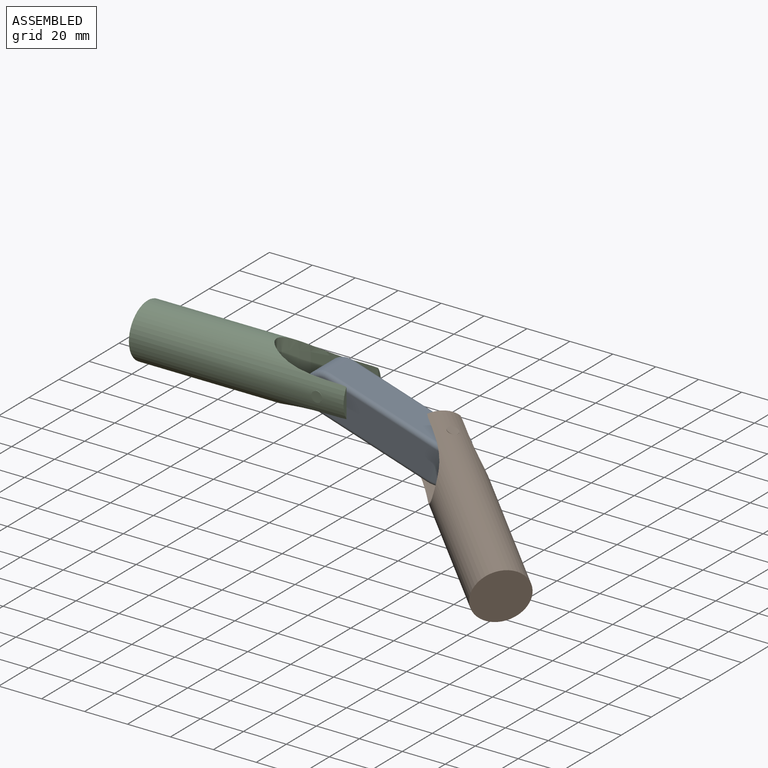
[diagram: assembled view]
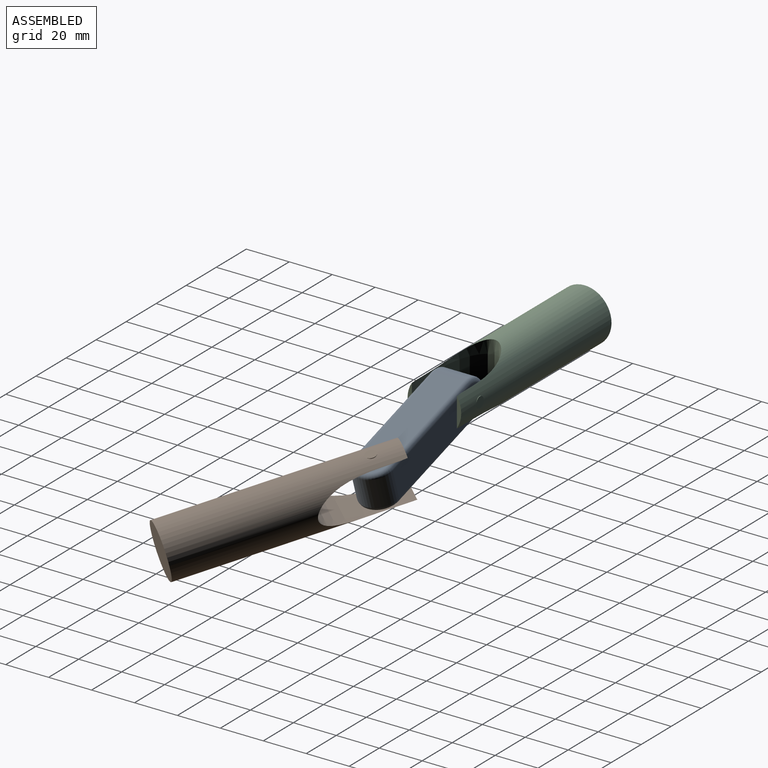
[diagram: assembled view, second angle]
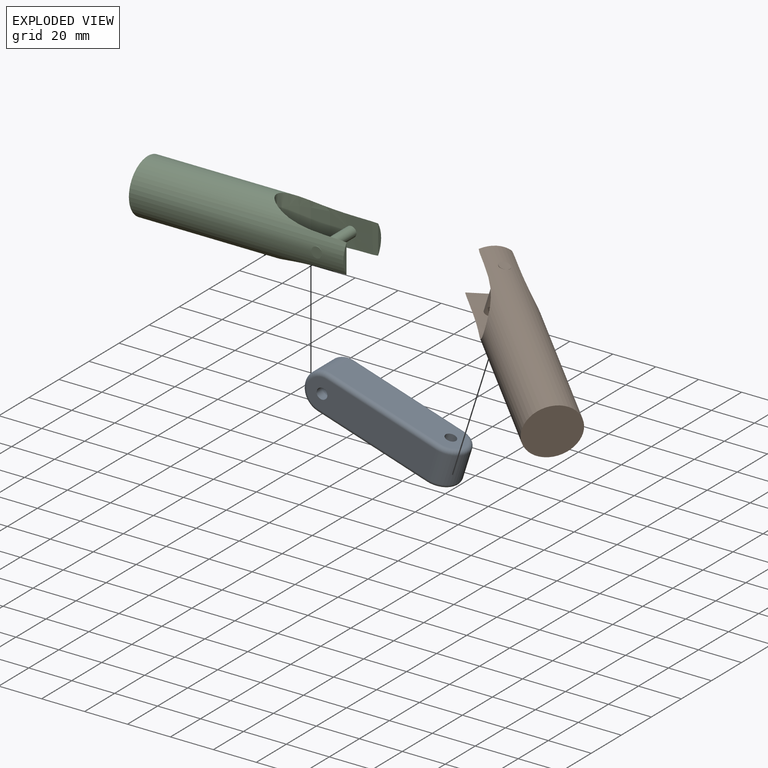
[diagram: exploded view]
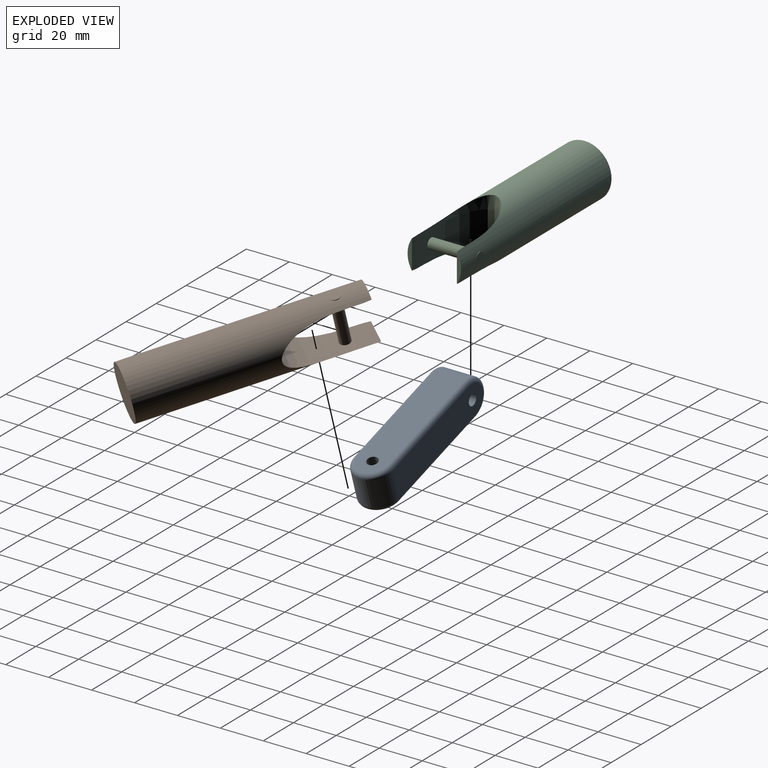
[diagram: exploded view, second angle]
ASSEMBLY  parts=3 mates=2
PART A: 16 faces, bbox 73x19.5x19.5 mm
  f0: plane 60.5x14mm, normal (0,0,-1), area 806.3mm2, adj f4,f7,f13,f14,f15
  f1: plane 60.5x14mm, normal (0,0,1), area 806.3mm2, adj f4,f7,f8,f9,f10
  f2: plane 60.5x14mm, normal (0,1,0), area 806.3mm2, adj f5,f6,f9,f11,f13
  f3: plane 60.5x14mm, normal (0,-1,0), area 806.3mm2, adj f5,f6,f10,f12,f14
  f4: cylinder r=9mm len=18mm, axis (0,1,0), area 395.8mm2, adj f0,f1,f11,f12
  f5: cylinder r=2.5mm len=18mm, axis (0,1,0), area 282.7mm2, adj f2,f3
  f6: cylinder r=9mm len=18mm, axis (0,0,1), area 395.8mm2, adj f2,f3,f8,f15
  f7: cylinder r=2.5mm len=18mm, axis (0,0,1), area 282.7mm2, adj f0,f1
  f8: torus R=7mm, axis (0,0,-1), area 81.7mm2, adj f1,f6,f9,f10
  f9: cylinder r=2mm len=53.5mm, axis (-1,0,0), area 168.1mm2, adj f1,f2,f8,f11
  f10: cylinder r=2mm len=53.5mm, axis (1,0,0), area 168.1mm2, adj f1,f3,f8,f12
  f11: torus R=7mm, axis (0,-1,0), area 81.7mm2, adj f2,f4,f9,f13
  f12: torus R=7mm, axis (0,-1,0), area 81.7mm2, adj f3,f4,f10,f14
  f13: cylinder r=2mm len=53.5mm, axis (1,0,0), area 168.1mm2, adj f0,f2,f11,f15
  f14: cylinder r=2mm len=53.5mm, axis (-1,0,0), area 168.1mm2, adj f0,f3,f12,f15
  f15: torus R=7mm, axis (0,0,-1), area 81.7mm2, adj f0,f6,f13,f14
PART B: 12 faces, bbox 100.9x25.9x25.9 mm
  f0: plane 13.56x2mm, normal (1,0,0), area 18.4mm2, adj f1,f4
  f1: extruded ~40x25mm, area 1484mm2, adj f0,f2,f3,f4
  f2: plane 13.56x2mm, normal (1,0,0), area 18.4mm2, adj f1,f4
  f3: cylinder r=2.5mm len=20.63mm, axis (0,0,1), area 324mm2, adj f1
  f4: cylinder r=12.5mm len=100mm, axis (-1,0,0), area 6180.1mm2, adj f0,f1,f2,f5,f7,f8,f10,f11
  f5: cylinder r=2.5mm len=5mm, axis (0,0,1), area 0mm2, adj f4,f6
  f6: plane 5.87x5.87mm, normal (0,0,1), area 19.6mm2, adj f5,f7
  f7: cylinder r=2.5mm len=5mm, axis (0,0,1), area 0mm2, adj f4,f6
  f8: cylinder r=2.5mm len=5mm, axis (0,0,1), area 0mm2, adj f4,f9
  f9: plane 5.87x5.87mm, normal (0,0,-1), area 19.6mm2, adj f8,f10
  f10: cylinder r=2.5mm len=5mm, axis (0,0,1), area 0mm2, adj f4,f9
  f11: plane 25x25mm, normal (-1,0,0), area 490.9mm2, adj f4
PART C: same geometry as B
PLACE A rot(axis=(0,1,0),17.5deg) t=(53.93,33.21,-33.56)mm
PLACE B rot(axis=(0.15,0.05,0.99),141.3deg) t=(169.63,-31.04,-70.17)mm
PLACE C rot(axis=(-1,0,0),90deg) t=(-33.57,24.18,-33.56)mm fixed
MATE revolute C.f3 <-> A.f5  axis (0,1,0) through (53.93,24.21,-33.56)mm
MATE revolute B.f3 <-> A.f6  axis (0.3,0,0.95) through (104.94,24.21,-49.68)mm
